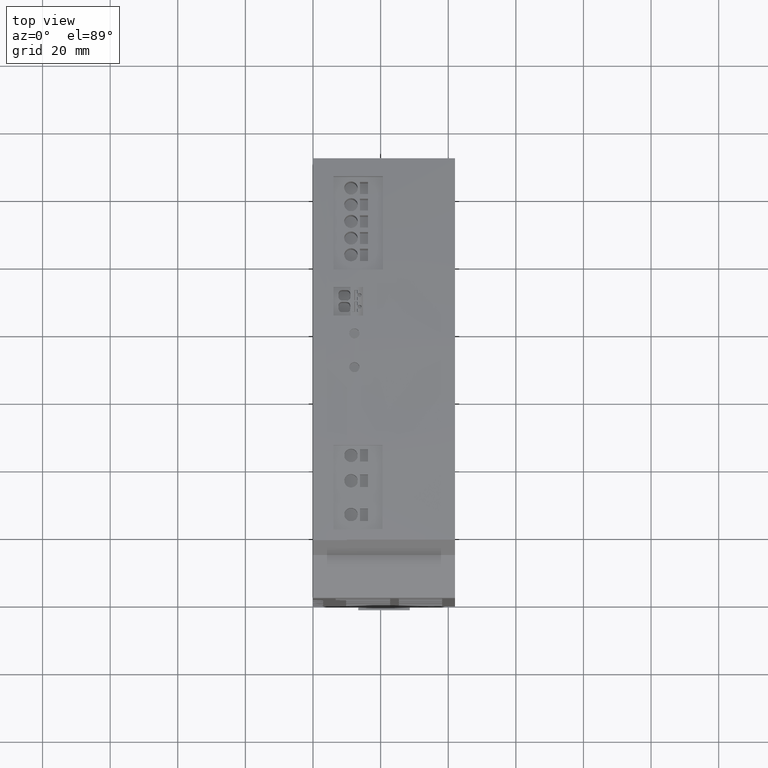
[diagram: clean part render]
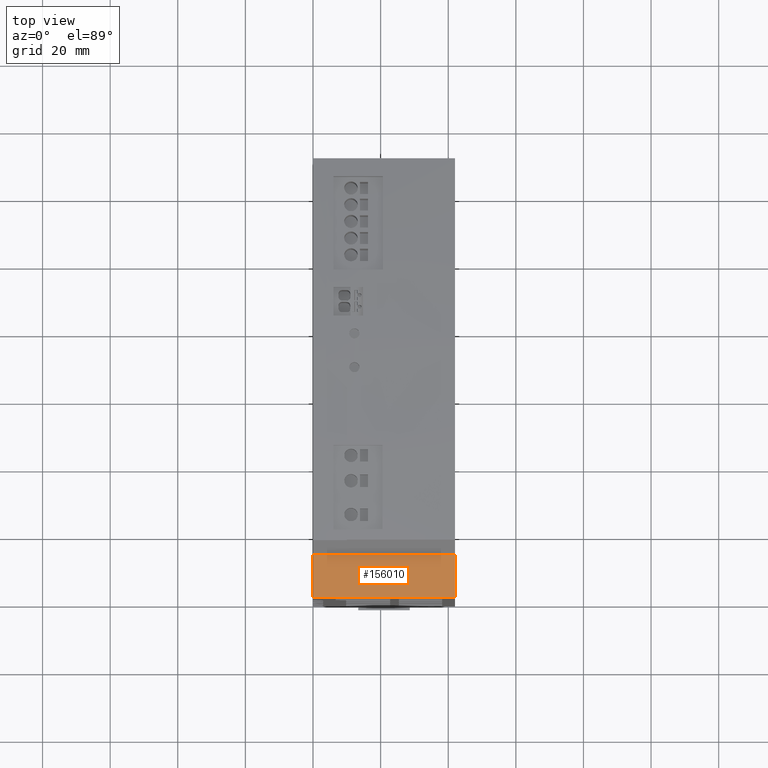
[diagram: same view with one face highlighted and labeled with its STEP entity id]
A machine part, top view. The second image highlights one B-rep face of the part: STEP entity #156010.
In plain terms, the highlighted cylindrical surface (partial cylindrical patch) has radius 75 mm, axis along (1, 0, 0).
Its self-contained STEP definition (entity closure, byte-faithful):
#150890=CARTESIAN_POINT('',(152.380000000004,12.6005909487722,-8.5));
#150900=VERTEX_POINT('',#150890);
#150930=CARTESIAN_POINT('',(78.52535719996,25.65783939084,-8.5));
#150940=DIRECTION('',(0.,0.,-1.));
#150950=DIRECTION('',(-1.,0.,0.));
#150960=AXIS2_PLACEMENT_3D('',#150930,#150940,#150950);
#150970=CIRCLE('',#150960,75.);
#150980=CARTESIAN_POINT('',(149.000000000004,0.,-8.5));
#150990=VERTEX_POINT('',#150980);
#151000=EDGE_CURVE('',#150900,#150990,#150970,.T.);
#155700=CARTESIAN_POINT('',(78.52535719996,25.65783939084,-70.3000024));
#155710=DIRECTION('',(0.,0.,-1.));
#155720=DIRECTION('',(-1.,0.,0.));
#155730=AXIS2_PLACEMENT_3D('',#155700,#155710,#155720);
#155740=CYLINDRICAL_SURFACE('',#155730,75.);
#155750=CARTESIAN_POINT('',(149.000000000004,0.,-70.3000024));
#155760=DIRECTION('',(0.,0.,-1.));
#155770=VECTOR('',#155760,1.);
#155780=LINE('',#155750,#155770);
#155790=CARTESIAN_POINT('',(149.000000000004,0.,-50.5));
#155800=VERTEX_POINT('',#155790);
#155810=EDGE_CURVE('',#150990,#155800,#155780,.T.);
#155820=ORIENTED_EDGE('',*,*,#155810,.T.);
#155830=ORIENTED_EDGE('',*,*,#151000,.T.);
#155840=CARTESIAN_POINT('',(152.380000000004,12.6005909487721,
-70.3000024));
#155850=DIRECTION('',(0.,0.,1.));
#155860=VECTOR('',#155850,1.);
#155870=LINE('',#155840,#155860);
#155880=CARTESIAN_POINT('',(152.380000000004,12.6005909487721,-50.5));
#155890=VERTEX_POINT('',#155880);
#155900=EDGE_CURVE('',#155890,#150900,#155870,.T.);
#155910=ORIENTED_EDGE('',*,*,#155900,.T.);
#155920=CARTESIAN_POINT('',(78.52535719996,25.65783939084,-50.5));
#155930=DIRECTION('',(0.,0.,-1.));
#155940=DIRECTION('',(-1.,0.,0.));
#155950=AXIS2_PLACEMENT_3D('',#155920,#155930,#155940);
#155960=CIRCLE('',#155950,75.);
#155970=EDGE_CURVE('',#155890,#155800,#155960,.T.);
#155980=ORIENTED_EDGE('',*,*,#155970,.F.);
#155990=EDGE_LOOP('',(#155980,#155910,#155830,#155820));
#156000=FACE_OUTER_BOUND('',#155990,.T.);
#156010=ADVANCED_FACE('',(#156000),#155740,.T.);